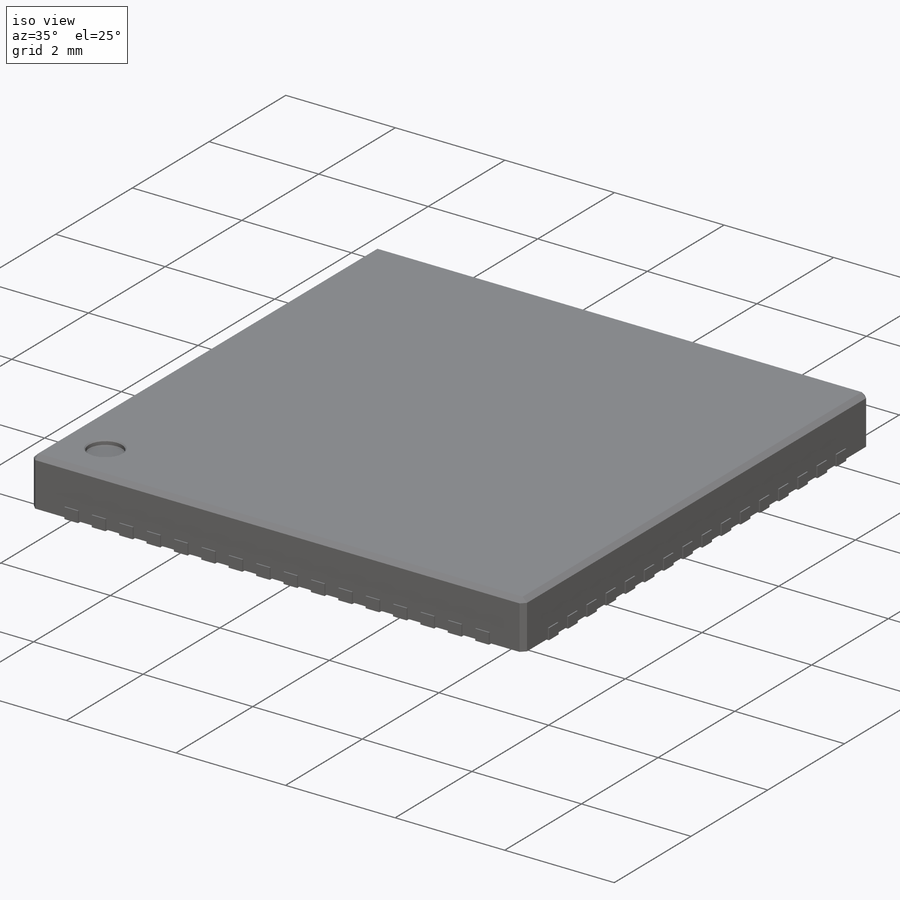
[diagram: iso view]
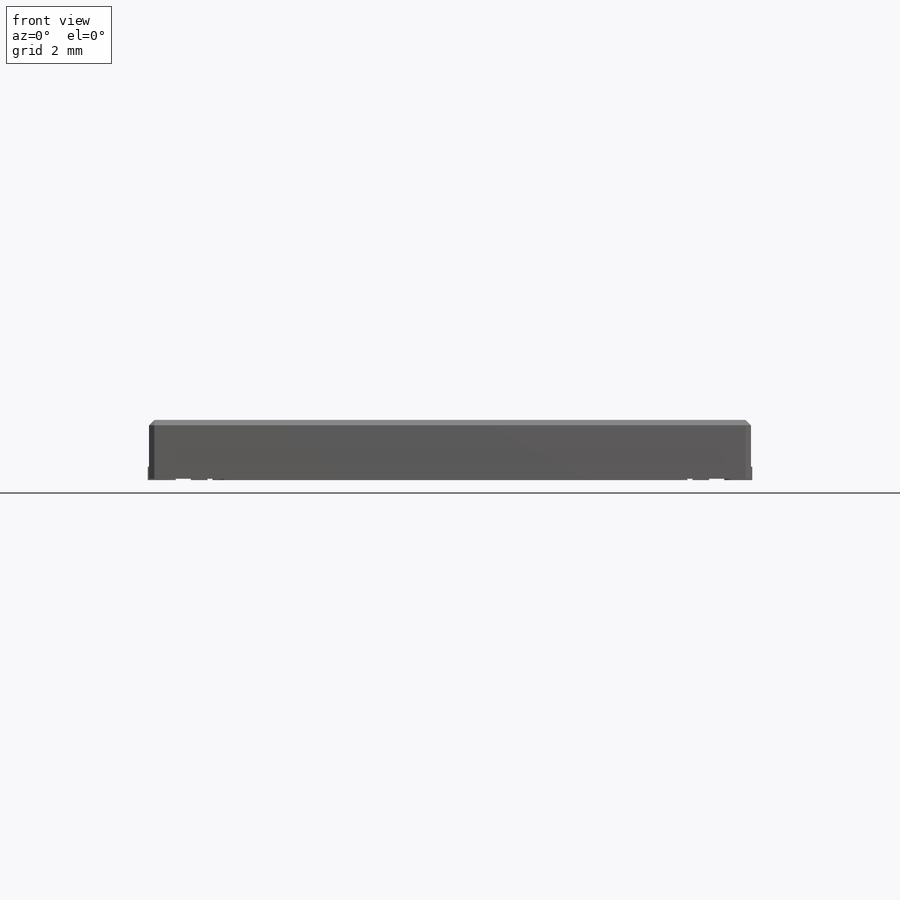
[diagram: front view]
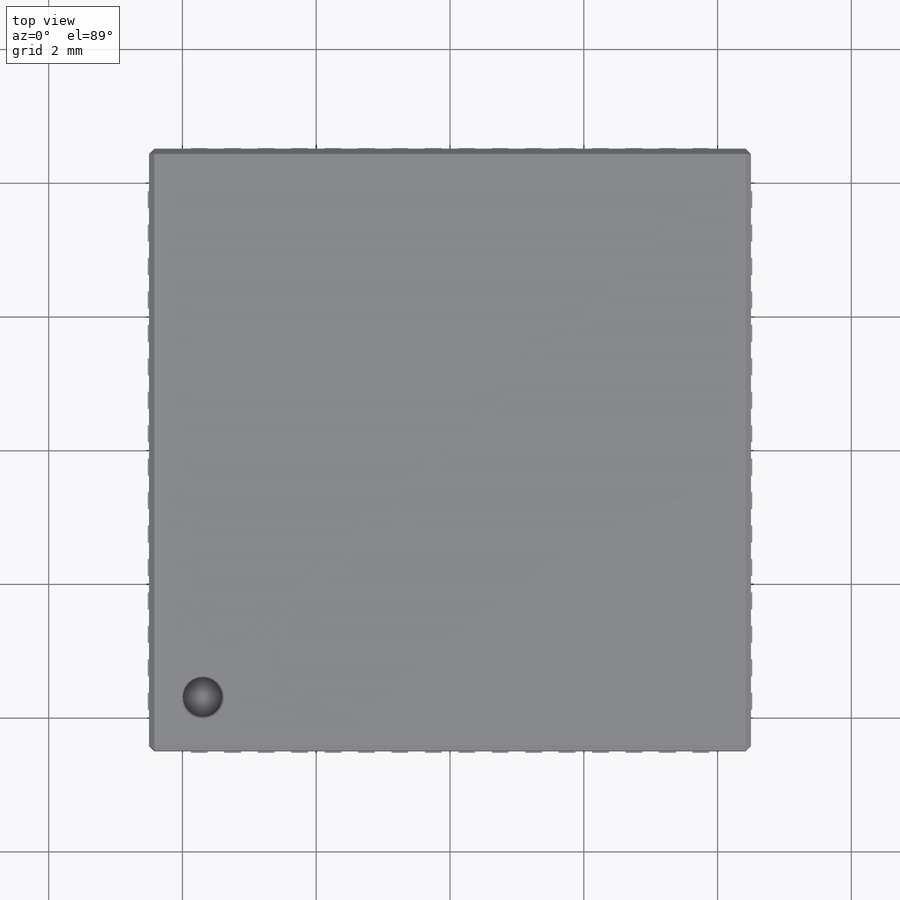
[diagram: top view]
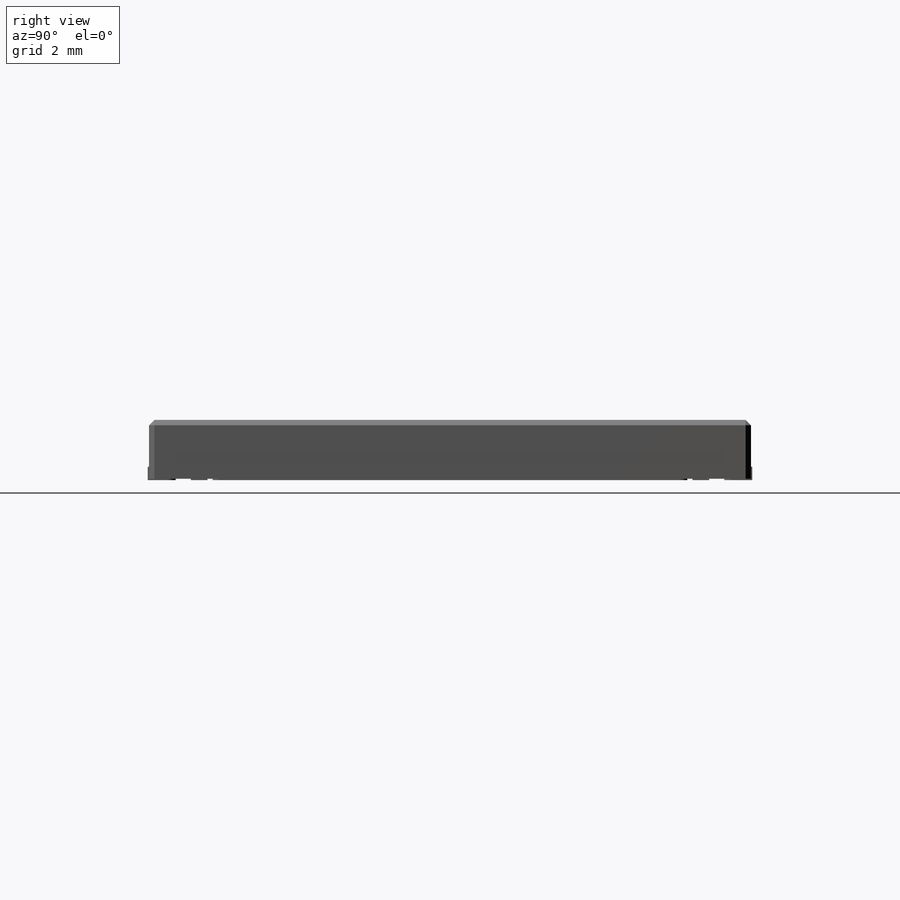
[diagram: right view]
SOLIDWORKS PART (.sldprt)
format: sldprt  version: not decoded by parser v0  size: 1,234,432 bytes
history: native  units: mm
features: sketch x5, extrude x3, chamfer x2, pattern_linear x2, material x1, cut_extrude x1, pattern_circular x1 (+13 scaffold rows collapsed)
feature tree (28):
  scaffold x13  (default folders/planes/origin — collapsed)
  material  "Material <not specified>"
  sketch  "Sketch1"
  sketch  "3DSketch1"  dims[D1=0.02mm D2=9.0mm D3=9.0mm]
  extrude  "Boss-Extrude1"  Depth=0.88mm
  chamfer  "Chamfer1"  Distance=0.08mm Angle=45deg
  sketch  "Sketch2"  dims[D3=0.6mm D1=0.8mm D2=0.8mm]
  cut_extrude  "Cut-Extrude1"  Depth=0.1mm
  chamfer  "Chamfer2"  Distance=0.02mm Angle=45deg
  sketch  "Sketch3"  dims[c1.D1=0.125mm c1.D2=0.25mm c1.D3=0.45mm c1.D4=0.42mm c2.D3=0.42mm c2.D1=4.52mm c2.D2=0.125mm c3.D3=0.25mm c3.D4=0.45mm c3.D5=0.25mm c3.D6=0.575mm c3.D1=0.25mm c3.D2=4.52mm]
  extrude  "Boss-Extrude2"  Depth=0.2mm
  pattern_linear  "LPattern1"  Count1=8 Count2=1 Spacing1=0.5mm Spacing2=0.5mm
  pattern_linear  "LPattern2"  Count1=9 Count2=1 Spacing1=0.5mm Spacing2=10mm
  pattern_circular  "CirPattern2"  Count=4 Angle=90deg
  sketch  "Sketch4"  dims[c1.D2=0.1mm c1.D3=0.02mm c1.D7=0.1mm c1.D8=0.1mm c1.D9=0.1mm c1.D10=0.02mm c1.D1=3.15mm c1.D4=1.575mm c1.D5=7.1mm c1.D6=7.1mm c2.D7=7.1mm]
  extrude  "Boss-Extrude3"  Depth=0.2mm
decode coverage: 13 of 14 modeling features carry decoded parameters
note: suppression state not decoded; provenance and decode notes live in map.json
